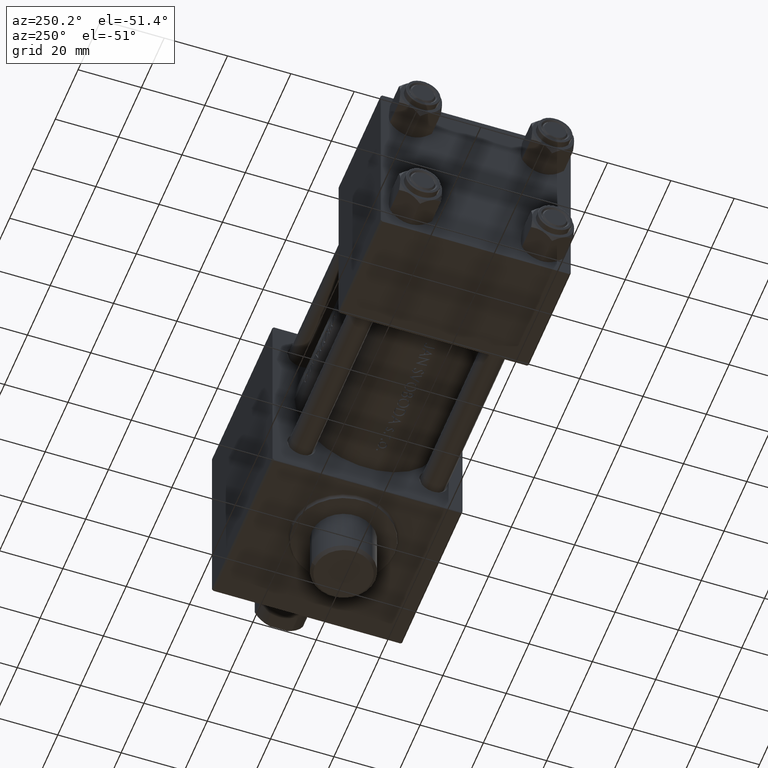
[diagram: clean part render]
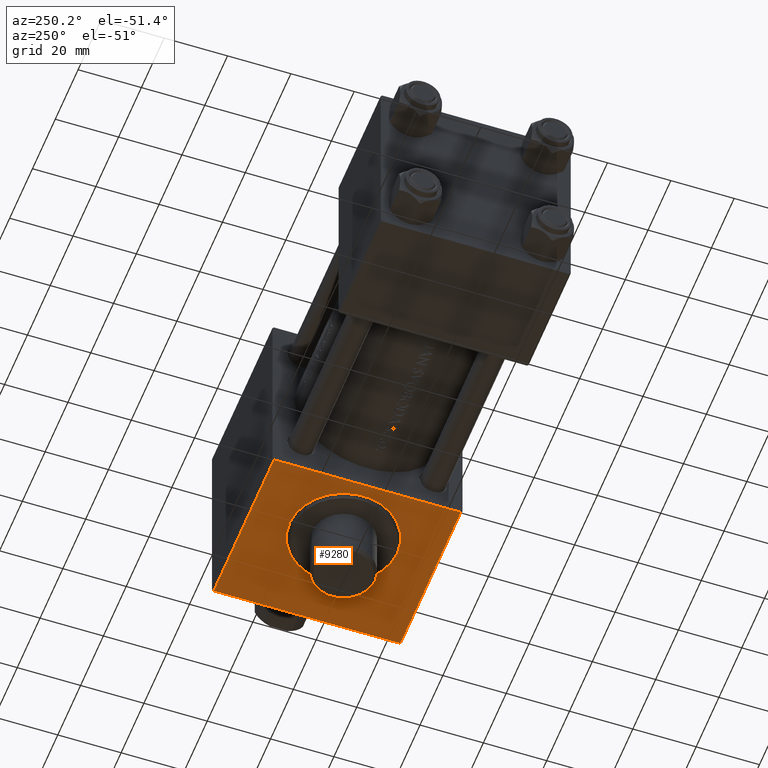
[diagram: same view with one face highlighted and labeled with its STEP entity id]
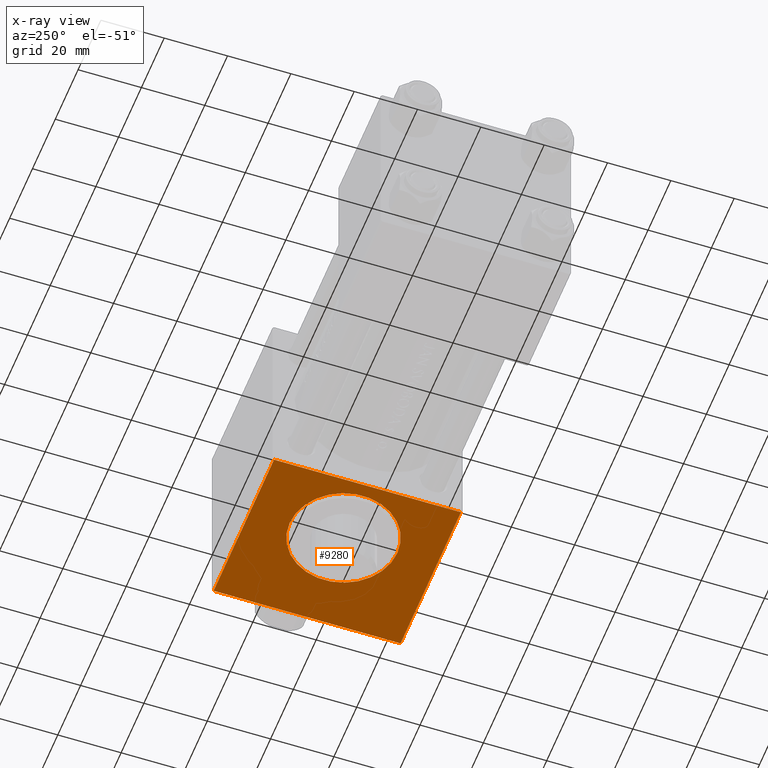
[diagram: x-ray of the same camera — body ghosted, the highlighted face saturated]
A machine part, auxiliary view. The second image highlights one B-rep face of the part: STEP entity #9280.
The next image is the same camera in x-ray: the body ghosted, the highlighted face saturated — about 0% of this face is hidden behind the body in this view.
In plain terms, the highlighted planar face has unit normal (0, 0, -1).
Its self-contained STEP definition (entity closure, byte-faithful):
#171 = DIRECTION ( 'NONE',  ( 0.000000000000000000, -1.000000000000000000, -0.000000000000000000 ) ) ;
#494 = LINE ( 'NONE', #22028, #847 ) ;
#847 = VECTOR ( 'NONE', #43121, 1000.000000000000000 ) ;
#1334 = VERTEX_POINT ( 'NONE', #42929 ) ;
#1524 = VECTOR ( 'NONE', #3309, 1000.000000000000000 ) ;
#2677 = ORIENTED_EDGE ( 'NONE', *, *, #32030, .F. ) ;
#2908 = PLANE ( 'NONE',  #16483 ) ;
#2966 = VERTEX_POINT ( 'NONE', #31209 ) ;
#3309 = DIRECTION ( 'NONE',  ( 0.000000000000000000, 0.000000000000000000, -1.000000000000000000 ) ) ;
#4004 = LINE ( 'NONE', #39842, #18875 ) ;
#5660 = CARTESIAN_POINT ( 'NONE',  ( 115.9999999999999858, 31.49999999999998579, -8.673617379883856746E-17 ) ) ;
#6101 = CARTESIAN_POINT ( 'NONE',  ( 95.00000000000000000, 31.49999999999998579, 29.50000000000000711 ) ) ;
#8224 = VECTOR ( 'NONE', #42889, 1000.000000000000000 ) ;
#9059 = CIRCLE ( 'NONE', #24017, 17.00000000000002487 ) ;
#9280 = ADVANCED_FACE ( 'NONE', ( #9465, #20230 ), #2908, .T. ) ;
#9465 = FACE_BOUND ( 'NONE', #30599, .T. ) ;
#13569 = EDGE_LOOP ( 'NONE', ( #2677, #16715, #17653, #19726 ) ) ;
#13840 = CARTESIAN_POINT ( 'NONE',  ( 95.00000000000000000, 31.49999999999998579, 29.99999999999999289 ) ) ;
#14880 = CARTESIAN_POINT ( 'NONE',  ( 95.00000000000000000, 31.49999999999998579, -29.49999999999999289 ) ) ;
#16483 = AXIS2_PLACEMENT_3D ( 'NONE', #27048, #17180, #42029 ) ;
#16715 = ORIENTED_EDGE ( 'NONE', *, *, #18226, .T. ) ;
#17180 = DIRECTION ( 'NONE',  ( -0.000000000000000000, 1.000000000000000000, 0.000000000000000000 ) ) ;
#17653 = ORIENTED_EDGE ( 'NONE', *, *, #38669, .T. ) ;
#17720 = DIRECTION ( 'NONE',  ( 0.000000000000000000, 0.000000000000000000, 1.000000000000000000 ) ) ;
#18226 = EDGE_CURVE ( 'NONE', #40779, #2966, #4004, .T. ) ;
#18875 = VECTOR ( 'NONE', #40068, 1000.000000000000000 ) ;
#19726 = ORIENTED_EDGE ( 'NONE', *, *, #32128, .T. ) ;
#20230 = FACE_OUTER_BOUND ( 'NONE', #13569, .T. ) ;
#21233 = CARTESIAN_POINT ( 'NONE',  ( 115.9999999999999858, 31.49999999999998579, -8.673617379883856746E-17 ) ) ;
#22028 = CARTESIAN_POINT ( 'NONE',  ( 148.0000000000000000, 31.49999999999998579, 29.99999999999999289 ) ) ;
#22244 = CARTESIAN_POINT ( 'NONE',  ( 148.0000000000000000, 31.49999999999998579, -29.49999999999999289 ) ) ;
#23097 = ORIENTED_EDGE ( 'NONE', *, *, #46093, .T. ) ;
#24017 = AXIS2_PLACEMENT_3D ( 'NONE', #21233, #171, #17720 ) ;
#27048 = CARTESIAN_POINT ( 'NONE',  ( 148.0000000000000000, 31.49999999999998579, 29.99999999999999289 ) ) ;
#27219 = DIRECTION ( 'NONE',  ( 0.000000000000000000, -1.000000000000000000, -0.000000000000000000 ) ) ;
#27240 = AXIS2_PLACEMENT_3D ( 'NONE', #5660, #27219, #41502 ) ;
#30030 = VERTEX_POINT ( 'NONE', #38375 ) ;
#30509 = VERTEX_POINT ( 'NONE', #37576 ) ;
#30599 = EDGE_LOOP ( 'NONE', ( #23097, #43174 ) ) ;
#31209 = CARTESIAN_POINT ( 'NONE',  ( 148.0000000000000000, 31.49999999999998579, 29.50000000000000711 ) ) ;
#32030 = EDGE_CURVE ( 'NONE', #40779, #38170, #34711, .T. ) ;
#32128 = EDGE_CURVE ( 'NONE', #30509, #38170, #32350, .T. ) ;
#32350 = LINE ( 'NONE', #22244, #8224 ) ;
#34291 = EDGE_CURVE ( 'NONE', #30030, #1334, #9059, .T. ) ;
#34711 = LINE ( 'NONE', #13840, #1524 ) ;
#37576 = CARTESIAN_POINT ( 'NONE',  ( 148.0000000000000000, 31.49999999999998579, -29.49999999999999289 ) ) ;
#38170 = VERTEX_POINT ( 'NONE', #14880 ) ;
#38375 = CARTESIAN_POINT ( 'NONE',  ( 115.9999999999999858, 31.49999999999998579, -17.00000000000002487 ) ) ;
#38669 = EDGE_CURVE ( 'NONE', #2966, #30509, #494, .T. ) ;
#39842 = CARTESIAN_POINT ( 'NONE',  ( 148.0000000000000000, 31.49999999999998579, 29.50000000000000711 ) ) ;
#40068 = DIRECTION ( 'NONE',  ( 1.000000000000000000, 0.000000000000000000, 0.000000000000000000 ) ) ;
#40779 = VERTEX_POINT ( 'NONE', #6101 ) ;
#41502 = DIRECTION ( 'NONE',  ( 0.000000000000000000, 0.000000000000000000, 1.000000000000000000 ) ) ;
#42029 = DIRECTION ( 'NONE',  ( 0.000000000000000000, -0.000000000000000000, 1.000000000000000000 ) ) ;
#42889 = DIRECTION ( 'NONE',  ( -1.000000000000000000, 0.000000000000000000, 0.000000000000000000 ) ) ;
#42929 = CARTESIAN_POINT ( 'NONE',  ( 115.9999999999999858, 31.49999999999998579, 17.00000000000002487 ) ) ;
#43121 = DIRECTION ( 'NONE',  ( 0.000000000000000000, 0.000000000000000000, -1.000000000000000000 ) ) ;
#43174 = ORIENTED_EDGE ( 'NONE', *, *, #34291, .T. ) ;
#43702 = CIRCLE ( 'NONE', #27240, 17.00000000000002487 ) ;
#46093 = EDGE_CURVE ( 'NONE', #1334, #30030, #43702, .T. ) ;